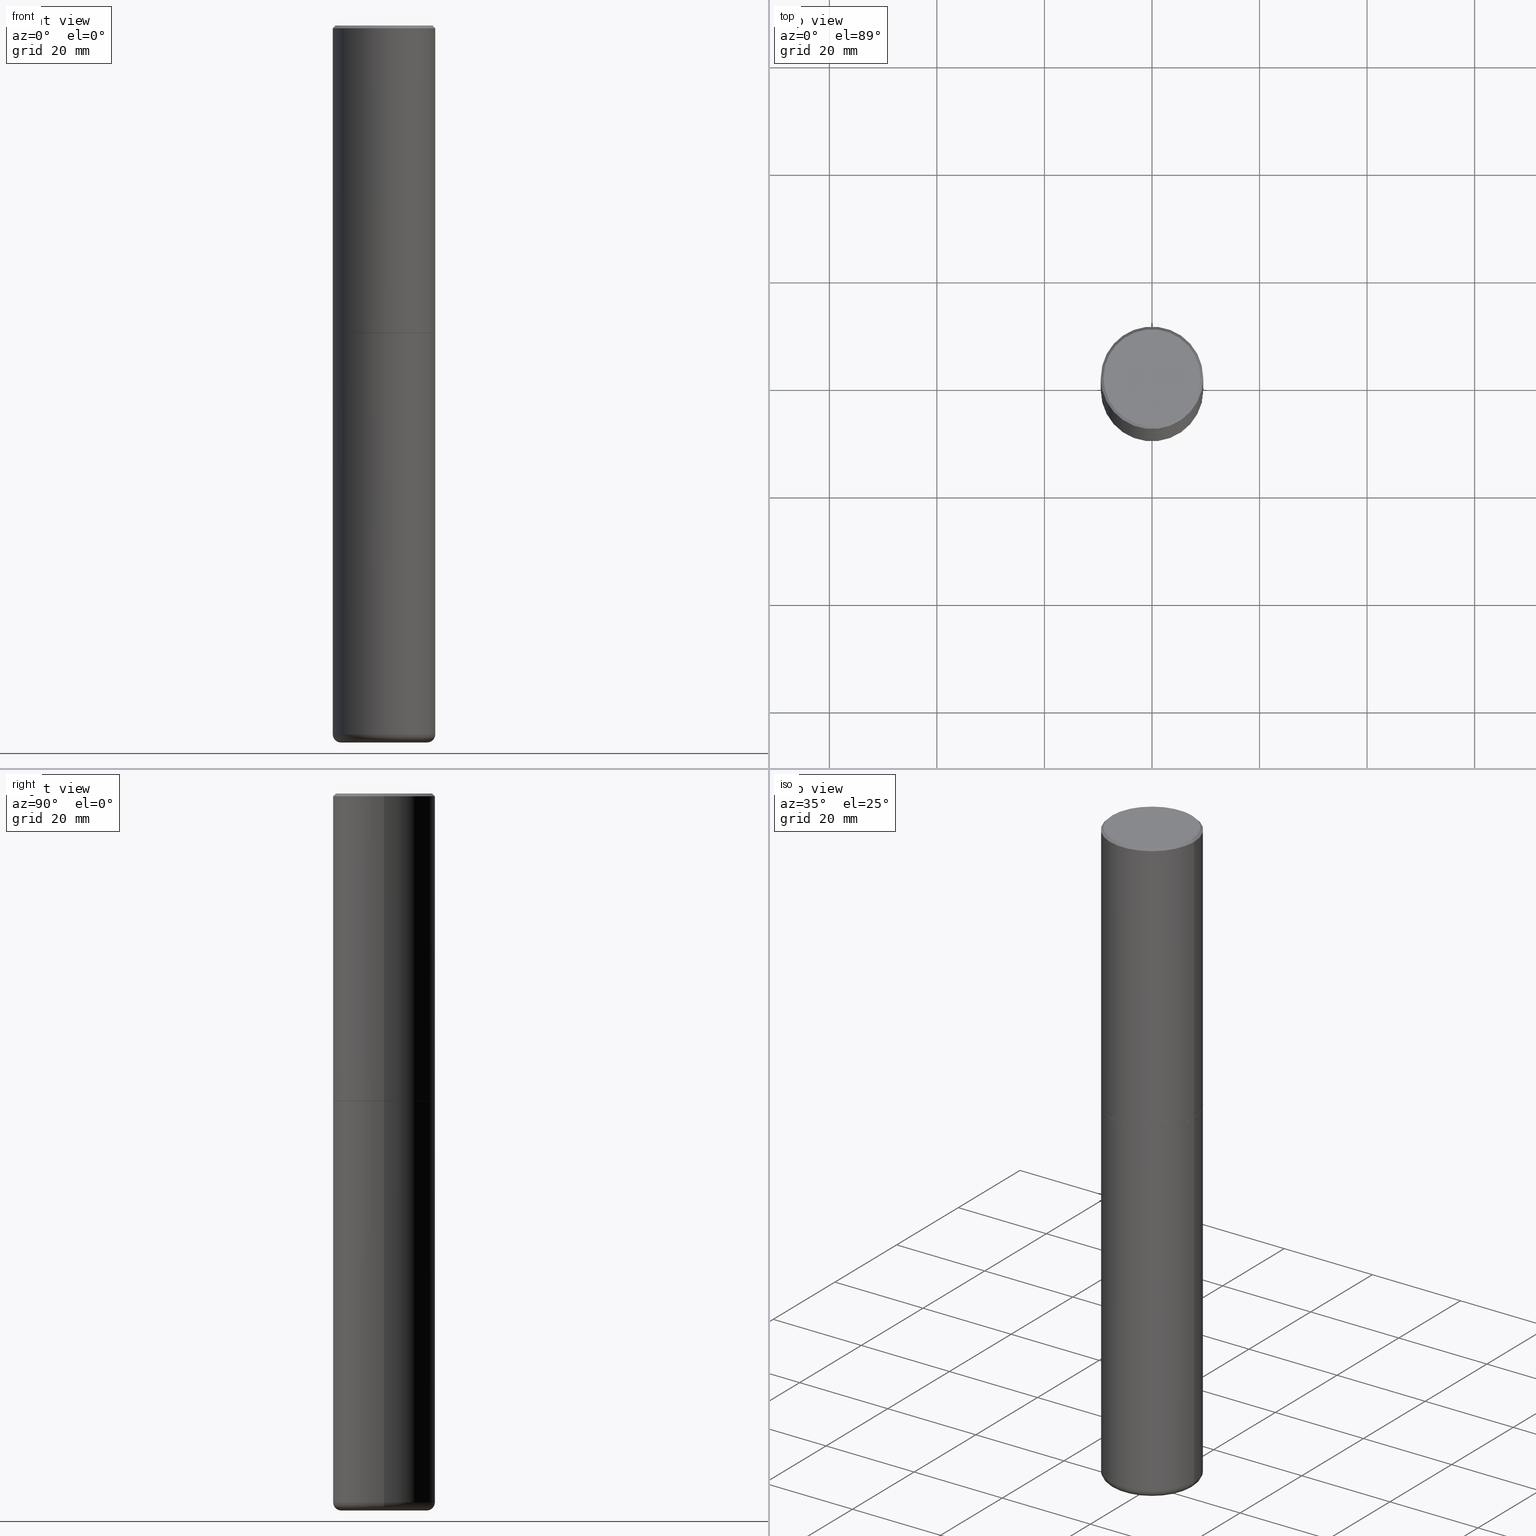
[diagram: canonical four-view strip — front | top / right | iso, engineering-drawing reading convention]
A machine part, canonical four-view strip (front | top / right | iso — engineering-drawing reading convention). The complete STEP part file that produces these views, byte-faithful:
ISO-10303-21;
HEADER;
FILE_DESCRIPTION (( 'STEP AP203' ),
    '1' );
FILE_NAME ('77454.STEP',
    '2024-05-02T19:43:49',
    ( '' ),
    ( '' ),
    'SwSTEP 2.0',
    'SolidWorks 2023',
    '' );
FILE_SCHEMA (( 'CONFIG_CONTROL_DESIGN' ));
ENDSEC;

DATA;
#1 = EDGE_LOOP ( 'NONE', ( #46, #390 ) ) ;
#2 = APPROVAL ( #207, 'UNSPECIFIED' ) ;
#3 = CARTESIAN_POINT ( 'NONE',  ( 0.3739999999999999991, -1.046746105385174245E-14, -2.250000000000000000 ) ) ;
#4 = ORIENTED_EDGE ( 'NONE', *, *, #68, .T. ) ;
#5 = ADVANCED_FACE ( 'NONE', ( #209 ), #349, .T. ) ;
#6 = CARTESIAN_POINT ( 'NONE',  ( 0.000000000000000000, 0.000000000000000000, 0.000000000000000000 ) ) ;
#7 = CARTESIAN_POINT ( 'NONE',  ( 3.966635374473835042E-45, -5.663304047445699634E-31, -1.622034746238156224E-16 ) ) ;
#8 = APPROVAL_PERSON_ORGANIZATION ( #217, #264, #11 ) ;
#9 = DIRECTION ( 'NONE',  ( -2.445468806185136597E-29, 3.491481338843145583E-15, 1.000000000000000000 ) ) ;
#10 = ORIENTED_EDGE ( 'NONE', *, *, #83, .F. ) ;
#11 = APPROVAL_ROLE ( '' ) ;
#12 = ORIENTED_EDGE ( 'NONE', *, *, #145, .T. ) ;
#13 = PERSON_AND_ORGANIZATION_ROLE ( 'classification_officer' ) ;
#14 = PRODUCT_RELATED_PRODUCT_CATEGORY ( 'detail', '', ( #415 ) ) ;
#15 = AXIS2_PLACEMENT_3D ( 'NONE', #154, #255, #56 ) ;
#16 = COORDINATED_UNIVERSAL_TIME_OFFSET ( 5, 0, .BEHIND. ) ;
#17 = LINE ( 'NONE', #306, #121 ) ;
#18 = FACE_OUTER_BOUND ( 'NONE', #1, .T. ) ;
#19 = CALENDAR_DATE ( 2024, 2, 5 ) ;
#20 = EDGE_CURVE ( 'NONE', #228, #234, #206, .T. ) ;
#21 = CARTESIAN_POINT ( 'NONE',  ( 1.283871123247196713E-28, -1.833027702892651322E-14, -5.250000000000000000 ) ) ;
#22 = AXIS2_PLACEMENT_3D ( 'NONE', #105, #41, #276 ) ;
#23 = AXIS2_PLACEMENT_3D ( 'NONE', #103, #175, #95 ) ;
#24 = PERSON ( 'UNSPECIFIED', 'UNSPECIFIED', 'UNSPECIFIED', ('UNSPECIFIED'), ('UNSPECIFIED'), ('UNSPECIFIED') ) ;
#25 = CARTESIAN_POINT ( 'NONE',  ( 1.269198310410085786E-28, -1.812078814859592648E-14, -5.190000000000000391 ) ) ;
#26 = CARTESIAN_POINT ( 'NONE',  ( 4.890937612370294178E-31, -6.982962677686321191E-17, -0.02000000000000008715 ) ) ;
#27 = ADVANCED_FACE ( 'NONE', ( #337 ), #148, .F. ) ;
#28 = CARTESIAN_POINT ( 'NONE',  ( 5.502304813916557343E-29, -7.855833012397078448E-15, -2.250000000000000000 ) ) ;
#29 = CIRCLE ( 'NONE', #211, 0.3550000000000001488 ) ;
#30 = CONICAL_SURFACE ( 'NONE', #157, 0.3750000000000000555, 0.7853981633974466137 ) ;
#31 = FACE_OUTER_BOUND ( 'NONE', #115, .T. ) ;
#32 = ORIENTED_EDGE ( 'NONE', *, *, #397, .F. ) ;
#33 = EDGE_LOOP ( 'NONE', ( #99, #277, #170, #365 ) ) ;
#34 = EDGE_CURVE ( 'NONE', #304, #100, #17, .T. ) ;
#35 = EDGE_LOOP ( 'NONE', ( #32, #12, #295, #291 ) ) ;
#36 = DIRECTION ( 'NONE',  ( -2.445468806185136597E-29, 3.491481338843145583E-15, 1.000000000000000000 ) ) ;
#37 = PRODUCT_DEFINITION_SHAPE ( 'NONE', 'NONE',  #216 ) ;
#38 = EDGE_LOOP ( 'NONE', ( #10, #274 ) ) ;
#39 = ADVANCED_FACE ( 'NONE', ( #299 ), #183, .T. ) ;
#40 = CARTESIAN_POINT ( 'NONE',  ( 0.3739999999999999991, -1.046746105385174245E-14, -2.250000000000000000 ) ) ;
#41 = DIRECTION ( 'NONE',  ( -2.445468806185136597E-29, 3.491481338843145583E-15, 1.000000000000000000 ) ) ;
#42 = LENGTH_MEASURE_WITH_UNIT ( LENGTH_MEASURE( 0.02539999999999999897 ), #130 );
#43 = CARTESIAN_POINT ( 'NONE',  ( 4.890937612370294178E-31, -6.982962677686321191E-17, -0.02000000000000008715 ) ) ;
#44 = MANIFOLD_SOLID_BREP ( 'Body-Move/Copy2[2]', #288 ) ;
#45 = DIRECTION ( 'NONE',  ( 0.7071067811866199593, -2.468850131083015945E-15, 0.7071067811864750752 ) ) ;
#46 = ORIENTED_EDGE ( 'NONE', *, *, #296, .T. ) ;
#47 = MANIFOLD_SOLID_BREP ( 'Body-Move/Copy2[1]', #391 ) ;
#48 = DATE_TIME_ROLE ( 'classification_date' ) ;
#49 = DIRECTION ( 'NONE',  ( 2.438088387897960049E-29, -3.491481338843145188E-15, -1.000000000000000000 ) ) ;
#50 = CARTESIAN_POINT ( 'NONE',  ( 4.890937612370294178E-31, -6.982962677686321191E-17, -0.02000000000000008715 ) ) ;
#51 = AXIS2_PLACEMENT_3D ( 'NONE', #342, #79, #367 ) ;
#52 = PERSON_AND_ORGANIZATION_ROLE ( 'design_supplier' ) ;
#53 = DIRECTION ( 'NONE',  ( -2.445468806185136597E-29, 3.491481338843145583E-15, 1.000000000000000000 ) ) ;
#54 = EDGE_CURVE ( 'NONE', #113, #167, #333, .T. ) ;
#55 = DIRECTION ( 'NONE',  ( -2.445468806185136597E-29, 3.491481338843145583E-15, 1.000000000000000000 ) ) ;
#56 = DIRECTION ( 'NONE',  ( 1.000000000000000000, -6.982962677686266711E-15, 4.876176775795935793E-29 ) ) ;
#57 = AXIS2_PLACEMENT_3D ( 'NONE', #245, #55, #156 ) ;
#58 = LOCAL_TIME ( 15, 43, 49.00000000000000000, #307 ) ;
#59 = FACE_OUTER_BOUND ( 'NONE', #172, .T. ) ;
#60 = FACE_OUTER_BOUND ( 'NONE', #35, .T. ) ;
#61 = CC_DESIGN_PERSON_AND_ORGANIZATION_ASSIGNMENT ( #242, #404, ( #216 ) ) ;
#62 = DIRECTION ( 'NONE',  ( -2.445468806185136597E-29, 3.491481338843145583E-15, 1.000000000000000000 ) ) ;
#63 = ORIENTED_EDGE ( 'NONE', *, *, #151, .F. ) ;
#64 = CC_DESIGN_SECURITY_CLASSIFICATION ( #316, ( #406 ) ) ;
#65 = CARTESIAN_POINT ( 'NONE',  ( -0.3750000000000001665, 2.664535259100376880E-15, -1.844600658845590439E-29 ) ) ;
#66 = EDGE_CURVE ( 'NONE', #356, #100, #374, .T. ) ;
#67 = ORIENTED_EDGE ( 'NONE', *, *, #247, .F. ) ;
#68 = EDGE_CURVE ( 'NONE', #228, #323, #29, .T. ) ;
#69 = CIRCLE ( 'NONE', #226, 0.3150000000000000577 ) ;
#70 = ORIENTED_EDGE ( 'NONE', *, *, #247, .T. ) ;
#71 = FACE_OUTER_BOUND ( 'NONE', #241, .T. ) ;
#72 = ORIENTED_EDGE ( 'NONE', *, *, #145, .F. ) ;
#73 = DIRECTION ( 'NONE',  ( 1.000000000000000000, -6.982962677686266711E-15, 4.878367520217860717E-29 ) ) ;
#74 = DIRECTION ( 'NONE',  ( 1.000000000000000000, -6.982962677686279332E-15, 0.000000000000000000 ) ) ;
#75 = CARTESIAN_POINT ( 'NONE',  ( 3.966635374473835042E-45, -5.663304047445699634E-31, -1.622034746238156224E-16 ) ) ;
#76 = AXIS2_PLACEMENT_3D ( 'NONE', #381, #53, #189 ) ;
#77 = DIRECTION ( 'NONE',  ( -2.445468806185136597E-29, 3.491481338843145583E-15, 1.000000000000000000 ) ) ;
#78 = CC_DESIGN_APPROVAL ( #2, ( #406 ) ) ;
#79 = DIRECTION ( 'NONE',  ( 0.000000000000000000, 0.000000000000000000, 1.000000000000000000 ) ) ;
#80 = ORIENTED_EDGE ( 'NONE', *, *, #204, .T. ) ;
#81 = DIRECTION ( 'NONE',  ( -2.445468806185136597E-29, 3.491481338843145583E-15, 1.000000000000000000 ) ) ;
#82 = SHAPE_DEFINITION_REPRESENTATION ( #37, #91 ) ;
#83 = EDGE_CURVE ( 'NONE', #418, #304, #308, .T. ) ;
#84 = CARTESIAN_POINT ( 'NONE',  ( 5.499859345110371740E-29, -7.852341531058233864E-15, -2.249000000000000110 ) ) ;
#85 = CIRCLE ( 'NONE', #200, 0.3750000000000000555 ) ;
#86 = COORDINATED_UNIVERSAL_TIME_OFFSET ( 5, 0, .BEHIND. ) ;
#87 = DIRECTION ( 'NONE',  ( -2.445468806185136597E-29, 3.491481338843145583E-15, 1.000000000000000000 ) ) ;
#88 = CC_DESIGN_DATE_AND_TIME_ASSIGNMENT ( #155, #303, ( #216 ) ) ;
#89 = PERSON_AND_ORGANIZATION ( #24, #322 ) ;
#90 = DIRECTION ( 'NONE',  ( 1.000000000000000000, -6.982962677686261189E-15, 0.000000000000000000 ) ) ;
#91 = ADVANCED_BREP_SHAPE_REPRESENTATION ( '77454', ( #47, #44, #51 ), #262 ) ;
#92 = CYLINDRICAL_SURFACE ( 'NONE', #15, 0.3750000000000001665 ) ;
#93 = CARTESIAN_POINT ( 'NONE',  ( 0.3750000000000000555, -2.618611004132350016E-15, 1.828566290923476203E-29 ) ) ;
#94 = DIRECTION ( 'NONE',  ( -2.445468806185136877E-29, 3.491481338843145188E-15, 1.000000000000000000 ) ) ;
#95 = DIRECTION ( 'NONE',  ( -1.000000000000000000, 7.105427357601001859E-15, 0.000000000000000000 ) ) ;
#96 = ADVANCED_FACE ( 'NONE', ( #341 ), #163, .T. ) ;
#97 = ORIENTED_EDGE ( 'NONE', *, *, #117, .T. ) ;
#98 = AXIS2_PLACEMENT_3D ( 'NONE', #290, #235, #237 ) ;
#99 = ORIENTED_EDGE ( 'NONE', *, *, #83, .T. ) ;
#100 = VERTEX_POINT ( 'NONE', #107 ) ;
#101 = EDGE_CURVE ( 'NONE', #197, #328, #380, .T. ) ;
#102 = ORIENTED_EDGE ( 'NONE', *, *, #363, .F. ) ;
#103 = CARTESIAN_POINT ( 'NONE',  ( -0.3150000000000000577, -1.588257853095161128E-14, -5.190000000000000391 ) ) ;
#104 = AXIS2_PLACEMENT_3D ( 'NONE', #75, #62, #73 ) ;
#105 = CARTESIAN_POINT ( 'NONE',  ( 1.269198310410085786E-28, -1.812078814859592648E-14, -5.190000000000000391 ) ) ;
#106 = PLANE ( 'NONE',  #98 ) ;
#107 = CARTESIAN_POINT ( 'NONE',  ( -0.3750000000000002776, -1.296550319817168545E-15, -2.249000000000000110 ) ) ;
#108 = CARTESIAN_POINT ( 'NONE',  ( 5.502304813916557343E-29, -7.855833012397078448E-15, -2.250000000000000000 ) ) ;
#109 = CARTESIAN_POINT ( 'NONE',  ( 2.478951750578625787E-15, 0.3550000000000001488, -1.320577612601225142E-15 ) ) ;
#110 = EDGE_CURVE ( 'NONE', #234, #321, #230, .T. ) ;
#111 = DATE_AND_TIME ( #396, #294 ) ;
#112 = VECTOR ( 'NONE', #253, 39.37007874015748143 ) ;
#113 = VERTEX_POINT ( 'NONE', #124 ) ;
#114 = PERSON_AND_ORGANIZATION_ROLE ( 'creator' ) ;
#115 = EDGE_LOOP ( 'NONE', ( #198, #260, #263, #332 ) ) ;
#116 = PERSON_AND_ORGANIZATION ( #24, #322 ) ;
#117 = EDGE_CURVE ( 'NONE', #328, #258, #85, .T. ) ;
#118 = FACE_OUTER_BOUND ( 'NONE', #326, .T. ) ;
#119 = DATE_AND_TIME ( #312, #195 ) ;
#120 = DIRECTION ( 'NONE',  ( -2.445468806185136877E-29, 3.491481338843145188E-15, 1.000000000000000000 ) ) ;
#121 = VECTOR ( 'NONE', #182, 39.37007874015748143 ) ;
#122 = CIRCLE ( 'NONE', #164, 0.3739999999999999991 ) ;
#123 = PERSON_AND_ORGANIZATION ( #24, #322 ) ;
#124 = CARTESIAN_POINT ( 'NONE',  ( -0.3750000000000000555, -1.032377532139612519E-14, -2.250000000000000000 ) ) ;
#125 = CARTESIAN_POINT ( 'NONE',  ( -0.3749999999999999445, -1.545625288949554763E-14, -5.190000000000000391 ) ) ;
#126 = CC_DESIGN_PERSON_AND_ORGANIZATION_ASSIGNMENT ( #244, #13, ( #316 ) ) ;
#127 = DIRECTION ( 'NONE',  ( 1.000000000000000000, -6.982962677686263555E-15, 4.883557194083111219E-29 ) ) ;
#128 = AXIS2_PLACEMENT_3D ( 'NONE', #84, #347, #311 ) ;
#129 = AXIS2_PLACEMENT_3D ( 'NONE', #185, #218, #409 ) ;
#130 =( LENGTH_UNIT ( ) NAMED_UNIT ( * ) SI_UNIT ( $, .METRE. ) );
#131 = ORIENTED_EDGE ( 'NONE', *, *, #353, .T. ) ;
#132 = CC_DESIGN_DATE_AND_TIME_ASSIGNMENT ( #346, #48, ( #316 ) ) ;
#133 = VERTEX_POINT ( 'NONE', #401 ) ;
#134 = CONICAL_SURFACE ( 'NONE', #57, 0.3739999999999999991, 0.7853981633975507526 ) ;
#135 = VECTOR ( 'NONE', #94, 39.37007874015748143 ) ;
#136 = ORIENTED_EDGE ( 'NONE', *, *, #407, .F. ) ;
#137 = ORIENTED_EDGE ( 'NONE', *, *, #101, .F. ) ;
#138 = CARTESIAN_POINT ( 'NONE',  ( -0.3750000000000000555, 2.548781377355486718E-15, -0.02000000000000008715 ) ) ;
#139 = EDGE_LOOP ( 'NONE', ( #243, #225, #355, #67 ) ) ;
#140 = CARTESIAN_POINT ( 'NONE',  ( 0.3750000000000002776, -1.047095253519058704E-14, -2.249000000000000110 ) ) ;
#141 = APPROVAL_PERSON_ORGANIZATION ( #123, #2, #373 ) ;
#142 = DIRECTION ( 'NONE',  ( 2.445468806185136597E-29, -3.491481338843145583E-15, -1.000000000000000000 ) ) ;
#143 = DESIGN_CONTEXT ( 'detailed design', #289, 'design' ) ;
#144 =( CONVERSION_BASED_UNIT ( 'INCH', #42 ) LENGTH_UNIT ( ) NAMED_UNIT ( #330 ) );
#145 = EDGE_CURVE ( 'NONE', #133, #197, #405, .T. ) ;
#146 = EDGE_LOOP ( 'NONE', ( #414, #4 ) ) ;
#147 = APPLICATION_PROTOCOL_DEFINITION ( 'international standard', 'config_control_design', 1994, #268 ) ;
#148 = PLANE ( 'NONE',  #335 ) ;
#149 = APPROVAL_DATE_TIME ( #111, #264 ) ;
#150 = DIRECTION ( 'NONE',  ( -2.445468806185136597E-29, 3.491481338843145583E-15, 1.000000000000000000 ) ) ;
#151 = EDGE_CURVE ( 'NONE', #197, #133, #69, .T. ) ;
#152 = DIRECTION ( 'NONE',  ( -2.445468806185136597E-29, 3.491481338843145583E-15, 1.000000000000000000 ) ) ;
#153 = APPROVAL_DATE_TIME ( #119, #160 ) ;
#154 = CARTESIAN_POINT ( 'NONE',  ( 0.000000000000000000, 0.000000000000000000, 0.000000000000000000 ) ) ;
#155 = DATE_AND_TIME ( #19, #58 ) ;
#156 = DIRECTION ( 'NONE',  ( 1.000000000000000000, -6.982962677686268288E-15, 0.000000000000000000 ) ) ;
#157 = AXIS2_PLACEMENT_3D ( 'NONE', #26, #159, #270 ) ;
#158 = CYLINDRICAL_SURFACE ( 'NONE', #76, 0.3750000000000000555 ) ;
#159 = DIRECTION ( 'NONE',  ( 2.445468806185136597E-29, -3.491481338843145583E-15, -1.000000000000000000 ) ) ;
#160 = APPROVAL ( #305, 'UNSPECIFIED' ) ;
#161 = CARTESIAN_POINT ( 'NONE',  ( 1.283871123247196713E-28, -1.833027702892651322E-14, -5.250000000000000000 ) ) ;
#162 = ADVANCED_FACE ( 'NONE', ( #282 ), #212, .F. ) ;
#163 = CONICAL_SURFACE ( 'NONE', #176, 0.3750000000000000555, 0.7853981633974466137 ) ;
#164 = AXIS2_PLACEMENT_3D ( 'NONE', #108, #165, #297 ) ;
#165 = DIRECTION ( 'NONE',  ( -2.445468806185136597E-29, 3.491481338843145583E-15, 1.000000000000000000 ) ) ;
#166 = EDGE_LOOP ( 'NONE', ( #416, #193, #324, #136 ) ) ;
#167 = VERTEX_POINT ( 'NONE', #351 ) ;
#168 = ORIENTED_EDGE ( 'NONE', *, *, #353, .F. ) ;
#169 = VECTOR ( 'NONE', #120, 39.37007874015748143 ) ;
#170 = ORIENTED_EDGE ( 'NONE', *, *, #66, .F. ) ;
#171 = LINE ( 'NONE', #40, #344 ) ;
#172 = EDGE_LOOP ( 'NONE', ( #387, #102, #267, #131 ) ) ;
#173 = CARTESIAN_POINT ( 'NONE',  ( 0.000000000000000000, 0.000000000000000000, 0.000000000000000000 ) ) ;
#174 = CARTESIAN_POINT ( 'NONE',  ( 5.502304813916557343E-29, -7.855833012397078448E-15, -2.250000000000000000 ) ) ;
#175 = DIRECTION ( 'NONE',  ( 7.105427357601001859E-15, 1.000000000000000000, -3.491481338843145583E-15 ) ) ;
#176 = AXIS2_PLACEMENT_3D ( 'NONE', #50, #142, #184 ) ;
#177 = DIRECTION ( 'NONE',  ( 1.000000000000000000, -6.982962677686266711E-15, 4.878367520217860717E-29 ) ) ;
#178 = APPLICATION_PROTOCOL_DEFINITION ( 'international standard', 'config_control_design', 1994, #289 ) ;
#179 = DIRECTION ( 'NONE',  ( 1.000000000000000000, -6.982962677686264344E-15, 0.000000000000000000 ) ) ;
#180 = APPROVAL_STATUS ( 'not_yet_approved' ) ;
#181 = ADVANCED_FACE ( 'NONE', ( #118 ), #92, .T. ) ;
#182 = DIRECTION ( 'NONE',  ( -0.7071067811866199593, 7.493145998870616062E-15, 0.7071067811864750752 ) ) ;
#183 = TOROIDAL_SURFACE ( 'NONE', #22, 0.3150000000000000577, 0.05999999999999994227 ) ;
#184 = DIRECTION ( 'NONE',  ( -1.000000000000000000, 6.982962677686265922E-15, 0.000000000000000000 ) ) ;
#185 = CARTESIAN_POINT ( 'NONE',  ( 1.269198310410085786E-28, -1.812078814859592648E-14, -5.190000000000000391 ) ) ;
#186 = ADVANCED_FACE ( 'NONE', ( #215 ), #158, .T. ) ;
#187 = CARTESIAN_POINT ( 'NONE',  ( 0.3750000000000000555, -2.642516375941188029E-15, -0.02000000000000008715 ) ) ;
#188 = CC_DESIGN_APPROVAL ( #160, ( #216 ) ) ;
#189 = DIRECTION ( 'NONE',  ( 1.000000000000000000, -6.982962677686265922E-15, 4.876176775795935793E-29 ) ) ;
#190 = DIRECTION ( 'NONE',  ( -2.445468806185136597E-29, 3.491481338843145583E-15, 1.000000000000000000 ) ) ;
#191 = ADVANCED_FACE ( 'NONE', ( #280 ), #134, .T. ) ;
#192 = DIRECTION ( 'NONE',  ( -2.445468806185136597E-29, 3.491481338843145583E-15, 1.000000000000000000 ) ) ;
#193 = ORIENTED_EDGE ( 'NONE', *, *, #340, .T. ) ;
#194 = AXIS2_PLACEMENT_3D ( 'NONE', #161, #87, #317 ) ;
#195 = LOCAL_TIME ( 15, 43, 49.00000000000000000, #402 ) ;
#196 = ORIENTED_EDGE ( 'NONE', *, *, #68, .F. ) ;
#197 = VERTEX_POINT ( 'NONE', #249 ) ;
#198 = ORIENTED_EDGE ( 'NONE', *, *, #204, .F. ) ;
#199 = UNCERTAINTY_MEASURE_WITH_UNIT (LENGTH_MEASURE( 1.000000000000000082E-05 ), #144, 'distance_accuracy_value', 'NONE');
#200 = AXIS2_PLACEMENT_3D ( 'NONE', #25, #284, #90 ) ;
#201 = ORIENTED_EDGE ( 'NONE', *, *, #221, .F. ) ;
#202 = DIRECTION ( 'NONE',  ( 1.000000000000000000, -6.982962677686264344E-15, 0.000000000000000000 ) ) ;
#203 = DIRECTION ( 'NONE',  ( 0.7071067811865462405, -7.319954787623251312E-15, -0.7071067811865486830 ) ) ;
#204 = EDGE_CURVE ( 'NONE', #258, #113, #410, .T. ) ;
#205 = DIRECTION ( 'NONE',  ( -2.445468806185136597E-29, 3.491481338843145583E-15, 1.000000000000000000 ) ) ;
#206 = LINE ( 'NONE', #339, #358 ) ;
#207 = APPROVAL_STATUS ( 'not_yet_approved' ) ;
#208 = ADVANCED_FACE ( 'NONE', ( #60 ), #315, .T. ) ;
#209 = FACE_OUTER_BOUND ( 'NONE', #33, .T. ) ;
#210 = DIRECTION ( 'NONE',  ( 1.000000000000000000, -6.982962677686268288E-15, 0.000000000000000000 ) ) ;
#211 = AXIS2_PLACEMENT_3D ( 'NONE', #7, #150, #177 ) ;
#212 = PLANE ( 'NONE',  #261 ) ;
#213 = AXIS2_PLACEMENT_3D ( 'NONE', #6, #9, #298 ) ;
#214 = CALENDAR_DATE ( 2024, 2, 5 ) ;
#215 = FACE_OUTER_BOUND ( 'NONE', #265, .T. ) ;
#216 = PRODUCT_DEFINITION ( 'UNKNOWN', '', #406, #143 ) ;
#217 = PERSON_AND_ORGANIZATION ( #24, #322 ) ;
#218 = DIRECTION ( 'NONE',  ( -2.445468806185136597E-29, 3.491481338843145583E-15, 1.000000000000000000 ) ) ;
#219 = DIRECTION ( 'NONE',  ( 2.438088387897960049E-29, -3.491481338843145188E-15, -1.000000000000000000 ) ) ;
#220 = AXIS2_PLACEMENT_3D ( 'NONE', #400, #152, #394 ) ;
#221 = EDGE_CURVE ( 'NONE', #328, #167, #376, .T. ) ;
#222 = CARTESIAN_POINT ( 'NONE',  ( -0.3750000000000000555, 2.548781377355486718E-15, -0.02000000000000008715 ) ) ;
#223 = FACE_OUTER_BOUND ( 'NONE', #166, .T. ) ;
#224 = ORIENTED_EDGE ( 'NONE', *, *, #397, .T. ) ;
#225 = ORIENTED_EDGE ( 'NONE', *, *, #382, .T. ) ;
#226 = AXIS2_PLACEMENT_3D ( 'NONE', #21, #190, #345 ) ;
#227 = LOCAL_TIME ( 15, 43, 49.00000000000000000, #86 ) ;
#228 = VERTEX_POINT ( 'NONE', #372 ) ;
#229 = ORIENTED_EDGE ( 'NONE', *, *, #233, .F. ) ;
#230 = CIRCLE ( 'NONE', #412, 0.3750000000000000555 ) ;
#231 = CARTESIAN_POINT ( 'NONE',  ( 4.890937612370294178E-31, -6.982962677686321191E-17, -0.02000000000000008715 ) ) ;
#232 = AXIS2_PLACEMENT_3D ( 'NONE', #173, #192, #320 ) ;
#233 = EDGE_CURVE ( 'NONE', #323, #321, #348, .T. ) ;
#234 = VERTEX_POINT ( 'NONE', #187 ) ;
#235 = DIRECTION ( 'NONE',  ( 2.438088387897960049E-29, -3.491481338843145188E-15, -1.000000000000000000 ) ) ;
#236 = CARTESIAN_POINT ( 'NONE',  ( 0.3150000000000000577, -2.032042139206709987E-14, -5.190000000000000391 ) ) ;
#237 = DIRECTION ( 'NONE',  ( -1.000000000000000000, 6.982962677686265922E-15, -4.876176775795935793E-29 ) ) ;
#238 = DIRECTION ( 'NONE',  ( 1.000000000000000000, -6.982962677686268288E-15, 0.000000000000000000 ) ) ;
#239 = AXIS2_PLACEMENT_3D ( 'NONE', #370, #81, #210 ) ;
#240 = CIRCLE ( 'NONE', #23, 0.05999999999999990757 ) ;
#241 = EDGE_LOOP ( 'NONE', ( #63, #72 ) ) ;
#242 = PERSON_AND_ORGANIZATION ( #24, #322 ) ;
#243 = ORIENTED_EDGE ( 'NONE', *, *, #34, .F. ) ;
#244 = PERSON_AND_ORGANIZATION ( #24, #322 ) ;
#245 = CARTESIAN_POINT ( 'NONE',  ( 5.502304813916557343E-29, -7.855833012397078448E-15, -2.250000000000000000 ) ) ;
#246 = PERSON_AND_ORGANIZATION ( #24, #322 ) ;
#247 = EDGE_CURVE ( 'NONE', #100, #356, #275, .T. ) ;
#248 = AXIS2_PLACEMENT_3D ( 'NONE', #331, #368, #238 ) ;
#249 = CARTESIAN_POINT ( 'NONE',  ( 0.3150000000000000577, -2.052991027239768976E-14, -5.250000000000000000 ) ) ;
#250 = CC_DESIGN_APPROVAL ( #264, ( #316 ) ) ;
#251 = COORDINATED_UNIVERSAL_TIME_OFFSET ( 5, 0, .BEHIND. ) ;
#252 = DIRECTION ( 'NONE',  ( -2.445468806185136597E-29, 3.491481338843145583E-15, 1.000000000000000000 ) ) ;
#253 = DIRECTION ( 'NONE',  ( -2.445468806185136877E-29, 3.491481338843145188E-15, 1.000000000000000000 ) ) ;
#254 = EDGE_CURVE ( 'NONE', #258, #328, #386, .T. ) ;
#255 = DIRECTION ( 'NONE',  ( -2.445468806185136597E-29, 3.491481338843145583E-15, 1.000000000000000000 ) ) ;
#256 = AXIS2_PLACEMENT_3D ( 'NONE', #408, #252, #127 ) ;
#257 = CIRCLE ( 'NONE', #104, 0.3550000000000001488 ) ;
#258 = VERTEX_POINT ( 'NONE', #125 ) ;
#259 = ADVANCED_FACE ( 'NONE', ( #18 ), #314, .F. ) ;
#260 = ORIENTED_EDGE ( 'NONE', *, *, #254, .T. ) ;
#261 = AXIS2_PLACEMENT_3D ( 'NONE', #28, #318, #285 ) ;
#262 =( GEOMETRIC_REPRESENTATION_CONTEXT ( 3 ) GLOBAL_UNCERTAINTY_ASSIGNED_CONTEXT ( ( #199 ) ) GLOBAL_UNIT_ASSIGNED_CONTEXT ( ( #144, #336, #287 ) ) REPRESENTATION_CONTEXT ( 'NONE', 'WORKASPACE' ) );
#263 = ORIENTED_EDGE ( 'NONE', *, *, #221, .T. ) ;
#264 = APPROVAL ( #180, 'UNSPECIFIED' ) ;
#265 = EDGE_LOOP ( 'NONE', ( #97, #80, #310, #201 ) ) ;
#266 = CARTESIAN_POINT ( 'NONE',  ( 0.3750000000000001665, -2.618611004132351200E-15, 1.828566290923476763E-29 ) ) ;
#267 = ORIENTED_EDGE ( 'NONE', *, *, #233, .T. ) ;
#268 = APPLICATION_CONTEXT ( 'configuration controlled 3d designs of mechanical parts and assemblies' ) ;
#269 = AXIS2_PLACEMENT_3D ( 'NONE', #236, #362, #74 ) ;
#270 = DIRECTION ( 'NONE',  ( -1.000000000000000000, 6.982962677686265922E-15, 0.000000000000000000 ) ) ;
#271 = ORIENTED_EDGE ( 'NONE', *, *, #151, .T. ) ;
#272 = ORIENTED_EDGE ( 'NONE', *, *, #20, .T. ) ;
#273 = CALENDAR_DATE ( 2024, 2, 5 ) ;
#274 = ORIENTED_EDGE ( 'NONE', *, *, #382, .F. ) ;
#275 = CIRCLE ( 'NONE', #128, 0.3750000000000002776 ) ;
#276 = DIRECTION ( 'NONE',  ( 1.000000000000000000, -6.982962677686263555E-15, 4.883557194083111219E-29 ) ) ;
#277 = ORIENTED_EDGE ( 'NONE', *, *, #34, .T. ) ;
#278 = APPROVAL_ROLE ( '' ) ;
#279 = ADVANCED_FACE ( 'NONE', ( #59 ), #30, .T. ) ;
#280 = FACE_OUTER_BOUND ( 'NONE', #139, .T. ) ;
#281 = MECHANICAL_CONTEXT ( 'NONE', #268, 'mechanical' ) ;
#282 = FACE_OUTER_BOUND ( 'NONE', #38, .T. ) ;
#283 = APPROVAL_PERSON_ORGANIZATION ( #116, #160, #278 ) ;
#284 = DIRECTION ( 'NONE',  ( -2.445468806185136597E-29, 3.491481338843145583E-15, 1.000000000000000000 ) ) ;
#285 = DIRECTION ( 'NONE',  ( 1.000000000000000000, -6.982962677686265922E-15, 4.876176775795935793E-29 ) ) ;
#286 = CC_DESIGN_PERSON_AND_ORGANIZATION_ASSIGNMENT ( #377, #114, ( #406 ) ) ;
#287 =( NAMED_UNIT ( * ) SI_UNIT ( $, .STERADIAN. ) SOLID_ANGLE_UNIT ( ) );
#288 = CLOSED_SHELL ( 'NONE', ( #5, #325, #96, #279, #181, #191, #162, #27 ) ) ;
#289 = APPLICATION_CONTEXT ( 'configuration controlled 3d designs of mechanical parts and assemblies' ) ;
#290 = CARTESIAN_POINT ( 'NONE',  ( 1.283871123247196713E-28, -1.833027702892651322E-14, -5.250000000000000000 ) ) ;
#291 = ORIENTED_EDGE ( 'NONE', *, *, #254, .F. ) ;
#292 = CC_DESIGN_PERSON_AND_ORGANIZATION_ASSIGNMENT ( #246, #371, ( #415 ) ) ;
#293 = ORIENTED_EDGE ( 'NONE', *, *, #117, .F. ) ;
#294 = LOCAL_TIME ( 15, 43, 49.00000000000000000, #16 ) ;
#295 = ORIENTED_EDGE ( 'NONE', *, *, #101, .T. ) ;
#296 = EDGE_CURVE ( 'NONE', #167, #113, #385, .T. ) ;
#297 = DIRECTION ( 'NONE',  ( 1.000000000000000000, -6.982962677686268288E-15, 0.000000000000000000 ) ) ;
#298 = DIRECTION ( 'NONE',  ( 1.000000000000000000, -6.982962677686266711E-15, 4.876176775795935793E-29 ) ) ;
#299 = FACE_OUTER_BOUND ( 'NONE', #384, .T. ) ;
#300 = CARTESIAN_POINT ( 'NONE',  ( -0.3739999999999999991, -5.193104726306079780E-15, -2.250000000000000000 ) ) ;
#301 = AXIS2_PLACEMENT_3D ( 'NONE', #379, #219, #350 ) ;
#302 = DIRECTION ( 'NONE',  ( -2.445468806185136597E-29, 3.491481338843145583E-15, 1.000000000000000000 ) ) ;
#303 = DATE_TIME_ROLE ( 'creation_date' ) ;
#304 = VERTEX_POINT ( 'NONE', #300 ) ;
#305 = APPROVAL_STATUS ( 'not_yet_approved' ) ;
#306 = CARTESIAN_POINT ( 'NONE',  ( -0.3739999999999999991, -5.198403180654302971E-15, -2.250000000000000000 ) ) ;
#307 = COORDINATED_UNIVERSAL_TIME_OFFSET ( 5, 0, .BEHIND. ) ;
#308 = CIRCLE ( 'NONE', #239, 0.3739999999999999991 ) ;
#309 = AXIS2_PLACEMENT_3D ( 'NONE', #231, #36, #327 ) ;
#310 = ORIENTED_EDGE ( 'NONE', *, *, #296, .F. ) ;
#311 = DIRECTION ( 'NONE',  ( 1.000000000000000000, -6.982962677686267499E-15, 0.000000000000000000 ) ) ;
#312 = CALENDAR_DATE ( 2024, 2, 5 ) ;
#313 = CC_DESIGN_PERSON_AND_ORGANIZATION_ASSIGNMENT ( #89, #52, ( #406 ) ) ;
#314 = PLANE ( 'NONE',  #301 ) ;
#315 = TOROIDAL_SURFACE ( 'NONE', #256, 0.3150000000000000577, 0.05999999999999994227 ) ;
#316 = SECURITY_CLASSIFICATION ( '', '', #369 ) ;
#317 = DIRECTION ( 'NONE',  ( 1.000000000000000000, -6.982962677686273810E-15, 0.000000000000000000 ) ) ;
#318 = DIRECTION ( 'NONE',  ( -2.438088387897960049E-29, 3.491481338843145188E-15, 1.000000000000000000 ) ) ;
#319 = DIRECTION ( 'NONE',  ( 1.000000000000000000, -6.982962677686265922E-15, 0.000000000000000000 ) ) ;
#320 = DIRECTION ( 'NONE',  ( 1.000000000000000000, -6.982962677686265922E-15, 4.876176775795935793E-29 ) ) ;
#321 = VERTEX_POINT ( 'NONE', #138 ) ;
#322 = ORGANIZATION ( 'UNSPECIFIED', 'UNSPECIFIED', '' ) ;
#323 = VERTEX_POINT ( 'NONE', #389 ) ;
#324 = ORIENTED_EDGE ( 'NONE', *, *, #110, .F. ) ;
#325 = ADVANCED_FACE ( 'NONE', ( #223 ), #364, .T. ) ;
#326 = EDGE_LOOP ( 'NONE', ( #354, #70, #388, #168 ) ) ;
#327 = DIRECTION ( 'NONE',  ( 1.000000000000000000, -6.982962677686265922E-15, 0.000000000000000000 ) ) ;
#328 = VERTEX_POINT ( 'NONE', #329 ) ;
#329 = CARTESIAN_POINT ( 'NONE',  ( 0.3749999999999999445, -2.073939915272827335E-14, -5.190000000000000391 ) ) ;
#330 = DIMENSIONAL_EXPONENTS ( 1.000000000000000000, 0.000000000000000000, 0.000000000000000000, 0.000000000000000000, 0.000000000000000000, 0.000000000000000000, 0.000000000000000000 ) ;
#331 = CARTESIAN_POINT ( 'NONE',  ( 5.502304813916557343E-29, -7.855833012397078448E-15, -2.250000000000000000 ) ) ;
#332 = ORIENTED_EDGE ( 'NONE', *, *, #54, .F. ) ;
#333 = CIRCLE ( 'NONE', #343, 0.3750000000000000555 ) ;
#334 = EDGE_CURVE ( 'NONE', #418, #356, #171, .T. ) ;
#335 = AXIS2_PLACEMENT_3D ( 'NONE', #109, #49, #360 ) ;
#336 =( NAMED_UNIT ( * ) PLANE_ANGLE_UNIT ( ) SI_UNIT ( $, .RADIAN. ) );
#337 = FACE_OUTER_BOUND ( 'NONE', #146, .T. ) ;
#338 = APPROVAL_DATE_TIME ( #399, #2 ) ;
#339 = CARTESIAN_POINT ( 'NONE',  ( 0.3750000000000000555, -2.642516375941188029E-15, -0.02000000000000008715 ) ) ;
#340 = EDGE_CURVE ( 'NONE', #100, #321, #352, .T. ) ;
#341 = FACE_OUTER_BOUND ( 'NONE', #395, .T. ) ;
#342 = CARTESIAN_POINT ( 'NONE',  ( 0.000000000000000000, 0.000000000000000000, 0.000000000000000000 ) ) ;
#343 = AXIS2_PLACEMENT_3D ( 'NONE', #174, #77, #179 ) ;
#344 = VECTOR ( 'NONE', #45, 39.37007874015748143 ) ;
#345 = DIRECTION ( 'NONE',  ( 1.000000000000000000, -6.982962677686273810E-15, 0.000000000000000000 ) ) ;
#346 = DATE_AND_TIME ( #214, #227 ) ;
#347 = DIRECTION ( 'NONE',  ( -2.445468806185136597E-29, 3.491481338843145583E-15, 1.000000000000000000 ) ) ;
#348 = LINE ( 'NONE', #222, #398 ) ;
#349 = CONICAL_SURFACE ( 'NONE', #248, 0.3739999999999999991, 0.7853981633975507526 ) ;
#350 = DIRECTION ( 'NONE',  ( -1.000000000000000000, 6.982962677686265922E-15, -4.876176775795935793E-29 ) ) ;
#351 = CARTESIAN_POINT ( 'NONE',  ( 0.3750000000000000555, -1.047444401652942689E-14, -2.250000000000000000 ) ) ;
#352 = LINE ( 'NONE', #65, #135 ) ;
#353 = EDGE_CURVE ( 'NONE', #321, #234, #366, .T. ) ;
#354 = ORIENTED_EDGE ( 'NONE', *, *, #340, .F. ) ;
#355 = ORIENTED_EDGE ( 'NONE', *, *, #334, .T. ) ;
#356 = VERTEX_POINT ( 'NONE', #140 ) ;
#357 = ORIENTED_EDGE ( 'NONE', *, *, #110, .T. ) ;
#358 = VECTOR ( 'NONE', #203, 39.37007874015748854 ) ;
#359 = LINE ( 'NONE', #266, #417 ) ;
#360 = DIRECTION ( 'NONE',  ( -1.000000000000000000, 6.982962677686265922E-15, -4.876176775795935793E-29 ) ) ;
#361 = CYLINDRICAL_SURFACE ( 'NONE', #232, 0.3750000000000000555 ) ;
#362 = DIRECTION ( 'NONE',  ( -6.982962677686266711E-15, -1.000000000000000000, 3.491481338843145583E-15 ) ) ;
#363 = EDGE_CURVE ( 'NONE', #323, #228, #257, .T. ) ;
#364 = CYLINDRICAL_SURFACE ( 'NONE', #213, 0.3750000000000001665 ) ;
#365 = ORIENTED_EDGE ( 'NONE', *, *, #334, .F. ) ;
#366 = CIRCLE ( 'NONE', #309, 0.3750000000000000555 ) ;
#367 = DIRECTION ( 'NONE',  ( 1.000000000000000000, 0.000000000000000000, 0.000000000000000000 ) ) ;
#368 = DIRECTION ( 'NONE',  ( -2.445468806185136597E-29, 3.491481338843145583E-15, 1.000000000000000000 ) ) ;
#369 = SECURITY_CLASSIFICATION_LEVEL ( 'unclassified' ) ;
#370 = CARTESIAN_POINT ( 'NONE',  ( 5.502304813916557343E-29, -7.855833012397078448E-15, -2.250000000000000000 ) ) ;
#371 = PERSON_AND_ORGANIZATION_ROLE ( 'design_owner' ) ;
#372 = CARTESIAN_POINT ( 'NONE',  ( 0.3550000000000001488, -2.538996582575041837E-15, -1.622034746237980703E-16 ) ) ;
#373 = APPROVAL_ROLE ( '' ) ;
#374 = CIRCLE ( 'NONE', #220, 0.3750000000000002776 ) ;
#375 = LOCAL_TIME ( 15, 43, 49.00000000000000000, #251 ) ;
#376 = LINE ( 'NONE', #93, #112 ) ;
#377 = PERSON_AND_ORGANIZATION ( #24, #322 ) ;
#378 = DIRECTION ( 'NONE',  ( -0.7071067811865462405, 2.468850131082243650E-15, -0.7071067811865486830 ) ) ;
#379 = CARTESIAN_POINT ( 'NONE',  ( 5.502304813916557343E-29, -7.855833012397078448E-15, -2.250000000000000000 ) ) ;
#380 = CIRCLE ( 'NONE', #269, 0.05999999999999990757 ) ;
#381 = CARTESIAN_POINT ( 'NONE',  ( 0.000000000000000000, 0.000000000000000000, 0.000000000000000000 ) ) ;
#382 = EDGE_CURVE ( 'NONE', #304, #418, #122, .T. ) ;
#383 = CARTESIAN_POINT ( 'NONE',  ( 5.502304813916557343E-29, -7.855833012397078448E-15, -2.250000000000000000 ) ) ;
#384 = EDGE_LOOP ( 'NONE', ( #271, #224, #293, #137 ) ) ;
#385 = CIRCLE ( 'NONE', #413, 0.3750000000000000555 ) ;
#386 = CIRCLE ( 'NONE', #129, 0.3750000000000000555 ) ;
#387 = ORIENTED_EDGE ( 'NONE', *, *, #20, .F. ) ;
#388 = ORIENTED_EDGE ( 'NONE', *, *, #407, .T. ) ;
#389 = CARTESIAN_POINT ( 'NONE',  ( -0.3550000000000001488, 2.513866563967055858E-15, -1.622034746238331006E-16 ) ) ;
#390 = ORIENTED_EDGE ( 'NONE', *, *, #54, .T. ) ;
#391 = CLOSED_SHELL ( 'NONE', ( #186, #39, #259, #393, #208, #411 ) ) ;
#392 = DIRECTION ( 'NONE',  ( -2.445468806185136877E-29, 3.491481338843145188E-15, 1.000000000000000000 ) ) ;
#393 = ADVANCED_FACE ( 'NONE', ( #31 ), #361, .T. ) ;
#394 = DIRECTION ( 'NONE',  ( 1.000000000000000000, -6.982962677686267499E-15, 0.000000000000000000 ) ) ;
#395 = EDGE_LOOP ( 'NONE', ( #196, #272, #357, #229 ) ) ;
#396 = CALENDAR_DATE ( 2024, 2, 5 ) ;
#397 = EDGE_CURVE ( 'NONE', #133, #258, #240, .T. ) ;
#398 = VECTOR ( 'NONE', #378, 39.37007874015748854 ) ;
#399 = DATE_AND_TIME ( #273, #375 ) ;
#400 = CARTESIAN_POINT ( 'NONE',  ( 5.499859345110371740E-29, -7.852341531058233864E-15, -2.249000000000000110 ) ) ;
#401 = CARTESIAN_POINT ( 'NONE',  ( -0.3150000000000000577, -1.577416015038887282E-14, -5.250000000000000000 ) ) ;
#402 = COORDINATED_UNIVERSAL_TIME_OFFSET ( 5, 0, .BEHIND. ) ;
#403 = CARTESIAN_POINT ( 'NONE',  ( -0.3750000000000000555, 2.664535259100376091E-15, -1.844600658845589598E-29 ) ) ;
#404 = PERSON_AND_ORGANIZATION_ROLE ( 'creator' ) ;
#405 = CIRCLE ( 'NONE', #194, 0.3150000000000000577 ) ;
#406 = PRODUCT_DEFINITION_FORMATION_WITH_SPECIFIED_SOURCE ( 'ANY', '', #415, .NOT_KNOWN. ) ;
#407 = EDGE_CURVE ( 'NONE', #356, #234, #359, .T. ) ;
#408 = CARTESIAN_POINT ( 'NONE',  ( 1.269198310410085786E-28, -1.812078814859592648E-14, -5.190000000000000391 ) ) ;
#409 = DIRECTION ( 'NONE',  ( 1.000000000000000000, -6.982962677686261189E-15, 0.000000000000000000 ) ) ;
#410 = LINE ( 'NONE', #403, #169 ) ;
#411 = ADVANCED_FACE ( 'NONE', ( #71 ), #106, .T. ) ;
#412 = AXIS2_PLACEMENT_3D ( 'NONE', #43, #302, #319 ) ;
#413 = AXIS2_PLACEMENT_3D ( 'NONE', #383, #205, #202 ) ;
#414 = ORIENTED_EDGE ( 'NONE', *, *, #363, .T. ) ;
#415 = PRODUCT ( '77454', '77454', '', ( #281 ) ) ;
#416 = ORIENTED_EDGE ( 'NONE', *, *, #66, .T. ) ;
#417 = VECTOR ( 'NONE', #392, 39.37007874015748143 ) ;
#418 = VERTEX_POINT ( 'NONE', #3 ) ;
ENDSEC;
END-ISO-10303-21;
